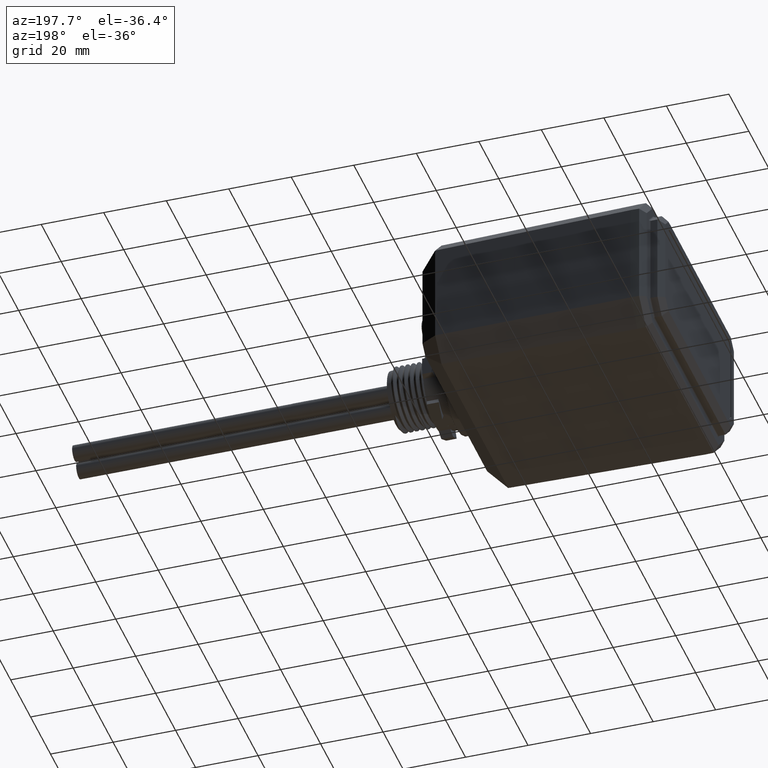
[diagram: clean part render]
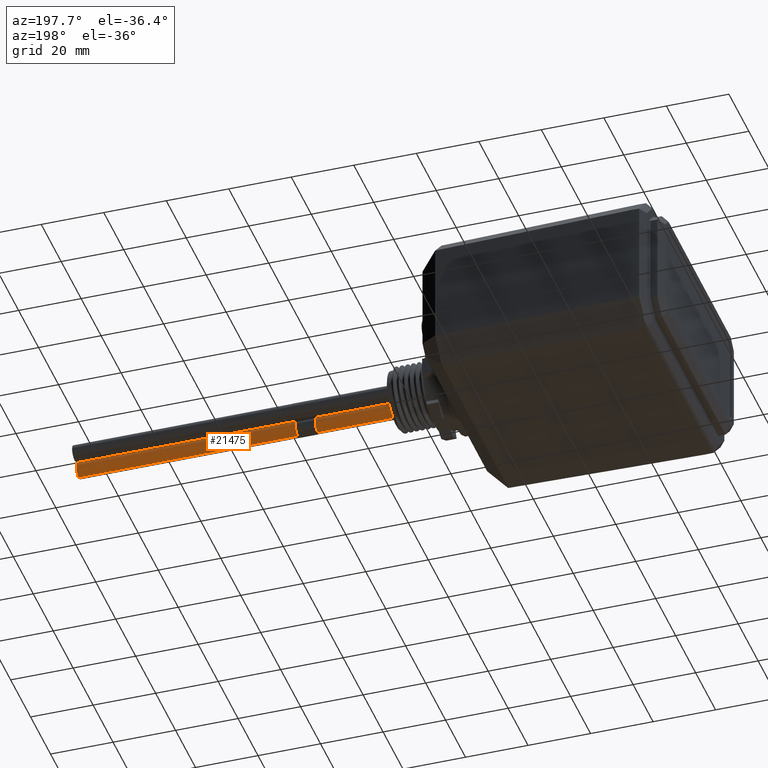
[diagram: same view with one face highlighted and labeled with its STEP entity id]
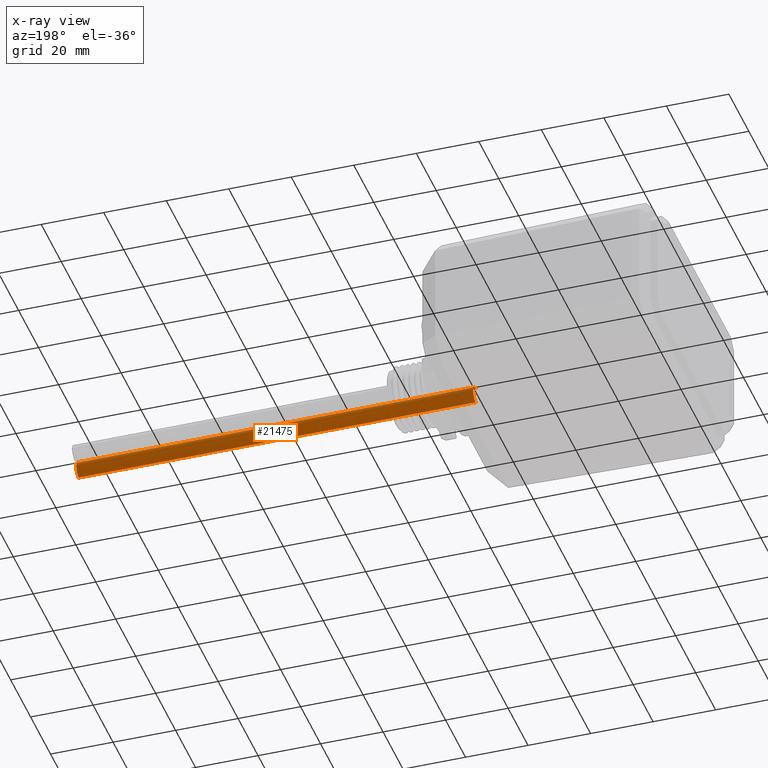
[diagram: x-ray of the same camera — body ghosted, the highlighted face saturated]
A machine part, auxiliary view. The second image highlights one B-rep face of the part: STEP entity #21475.
The next image is the same camera in x-ray: the body ghosted, the highlighted face saturated — about 5% of this face is hidden behind the body in this view.
In plain terms, the highlighted cylindrical surface (edge-blend (fillet) strip) has radius 2.6035 mm, axis along (1, 0, 0).
Its self-contained STEP definition (entity closure, byte-faithful):
#140 = ORIENTED_EDGE ( 'NONE', *, *, #12746, .T. ) ;
#179 = ORIENTED_EDGE ( 'NONE', *, *, #3042, .F. ) ;
#1538 = CIRCLE ( 'NONE', #13615, 0.1024999999999994000 ) ;
#2230 = FACE_OUTER_BOUND ( 'NONE', #2642, .T. ) ;
#2642 = EDGE_LOOP ( 'NONE', ( #17774, #13799, #140, #25822, #179 ) ) ;
#3042 = EDGE_CURVE ( 'NONE', #12634, #16654, #1538, .T. ) ;
#3496 = AXIS2_PLACEMENT_3D ( 'NONE', #11069, #11034, #10923 ) ;
#4829 = DIRECTION ( 'NONE',  ( 1.000000000000000000, 0.0000000000000000000, 0.0000000000000000000 ) ) ;
#5216 = CARTESIAN_POINT ( 'NONE',  ( 0.4114096553107203800, 0.9825759815220717100, -2.192289539623024200 ) ) ;
#5936 = CIRCLE ( 'NONE', #3496, 0.1024999999999994000 ) ;
#8871 = CARTESIAN_POINT ( 'NONE',  ( 0.4114096553107203800, 0.9906345006784808000, -2.397131088799467700 ) ) ;
#10923 = DIRECTION ( 'NONE',  ( 0.0000000000000000000, -0.3983708021500011500, 0.9172244567140394000 ) ) ;
#11034 = DIRECTION ( 'NONE',  ( -1.000000000000000000, -5.885691041986276400E-016, -1.044558920814850100E-016 ) ) ;
#11069 = CARTESIAN_POINT ( 'NONE',  ( 5.411409655310715800, 0.9866052411002762500, -2.294710314211245700 ) ) ;
#12436 = AXIS2_PLACEMENT_3D ( 'NONE', #14320, #16399, #25408 ) ;
#12634 = VERTEX_POINT ( 'NONE', #15755 ) ;
#12746 = EDGE_CURVE ( 'NONE', #14539, #23447, #5936, .T. ) ;
#13615 = AXIS2_PLACEMENT_3D ( 'NONE', #25521, #25516, #25474 ) ;
#13799 = ORIENTED_EDGE ( 'NONE', *, *, #25912, .T. ) ;
#14006 = VECTOR ( 'NONE', #4829, 39.37007874015748100 ) ;
#14320 = CARTESIAN_POINT ( 'NONE',  ( 0.4114096553107203800, 0.9866052411002762500, -2.294710314211245700 ) ) ;
#14539 = VERTEX_POINT ( 'NONE', #21837 ) ;
#14552 = CARTESIAN_POINT ( 'NONE',  ( 0.4114096553107203800, 0.9825759815220717100, -2.192289539623024200 ) ) ;
#14719 = EDGE_CURVE ( 'NONE', #23600, #12634, #15885, .T. ) ;
#15755 = CARTESIAN_POINT ( 'NONE',  ( 0.4114096553107203800, 1.080620747913465300, -2.253877306990872000 ) ) ;
#15885 = CIRCLE ( 'NONE', #12436, 0.1024999999999994000 ) ;
#16399 = DIRECTION ( 'NONE',  ( -1.000000000000000000, -5.885691041986276400E-016, -1.044558920814850100E-016 ) ) ;
#16654 = VERTEX_POINT ( 'NONE', #8871 ) ;
#17055 = LINE ( 'NONE', #5216, #14006 ) ;
#17774 = ORIENTED_EDGE ( 'NONE', *, *, #14719, .F. ) ;
#19981 = DIRECTION ( 'NONE',  ( 0.0000000000000000000, 0.03930984954345905600, -0.9992270691533884400 ) ) ;
#20488 = EDGE_CURVE ( 'NONE', #16654, #23447, #27283, .T. ) ;
#21475 = ADVANCED_FACE ( 'NONE', ( #2230 ), #23953, .T. ) ;
#21837 = CARTESIAN_POINT ( 'NONE',  ( 5.411409655310715800, 0.9825759815220717100, -2.192289539623024200 ) ) ;
#23447 = VERTEX_POINT ( 'NONE', #23634 ) ;
#23600 = VERTEX_POINT ( 'NONE', #14552 ) ;
#23634 = CARTESIAN_POINT ( 'NONE',  ( 5.411409655310715800, 0.9906345006784808000, -2.397131088799467700 ) ) ;
#23953 = CYLINDRICAL_SURFACE ( 'NONE', #33993, 0.1024999999999994400 ) ;
#24299 = CARTESIAN_POINT ( 'NONE',  ( 0.4114096553107203800, 0.9906345006784808000, -2.397131088799467700 ) ) ;
#24767 = DIRECTION ( 'NONE',  ( 1.000000000000000000, 0.0000000000000000000, 0.0000000000000000000 ) ) ;
#25408 = DIRECTION ( 'NONE',  ( 0.0000000000000000000, -0.3983708021500011500, 0.9172244567140394000 ) ) ;
#25474 = DIRECTION ( 'NONE',  ( 0.0000000000000000000, -0.3983708021500011500, 0.9172244567140394000 ) ) ;
#25516 = DIRECTION ( 'NONE',  ( -1.000000000000000000, -5.885691041986276400E-016, -1.044558920814850100E-016 ) ) ;
#25521 = CARTESIAN_POINT ( 'NONE',  ( 0.4114096553107203800, 0.9866052411002762500, -2.294710314211245700 ) ) ;
#25822 = ORIENTED_EDGE ( 'NONE', *, *, #20488, .F. ) ;
#25912 = EDGE_CURVE ( 'NONE', #23600, #14539, #17055, .T. ) ;
#27197 = VECTOR ( 'NONE', #24767, 39.37007874015748100 ) ;
#27283 = LINE ( 'NONE', #24299, #27197 ) ;
#30192 = DIRECTION ( 'NONE',  ( 1.000000000000000000, 0.0000000000000000000, 0.0000000000000000000 ) ) ;
#30308 = CARTESIAN_POINT ( 'NONE',  ( 0.4114096553107203800, 0.9866052411002762500, -2.294710314211245700 ) ) ;
#33993 = AXIS2_PLACEMENT_3D ( 'NONE', #30308, #30192, #19981 ) ;